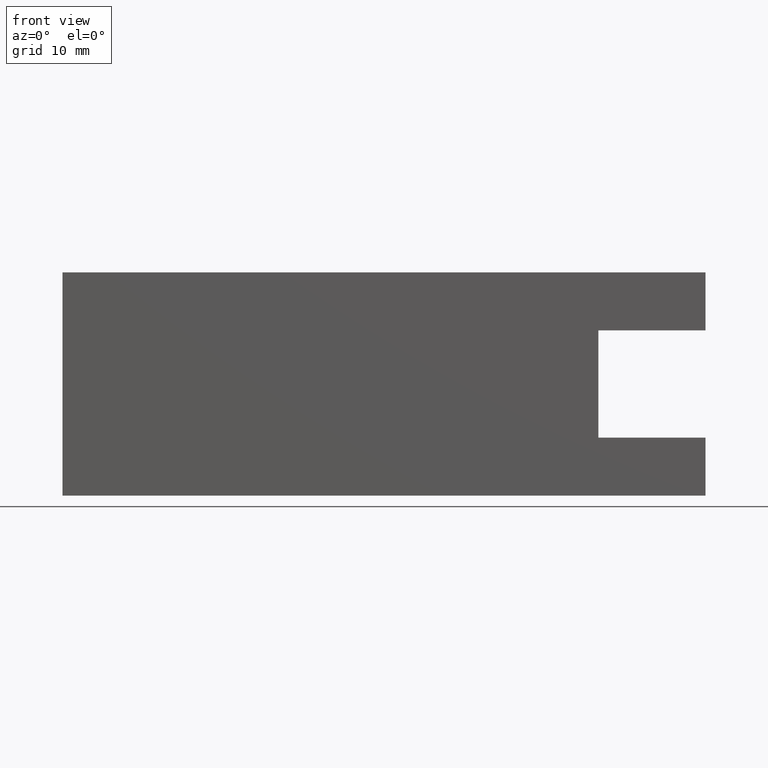
[diagram: clean part render]
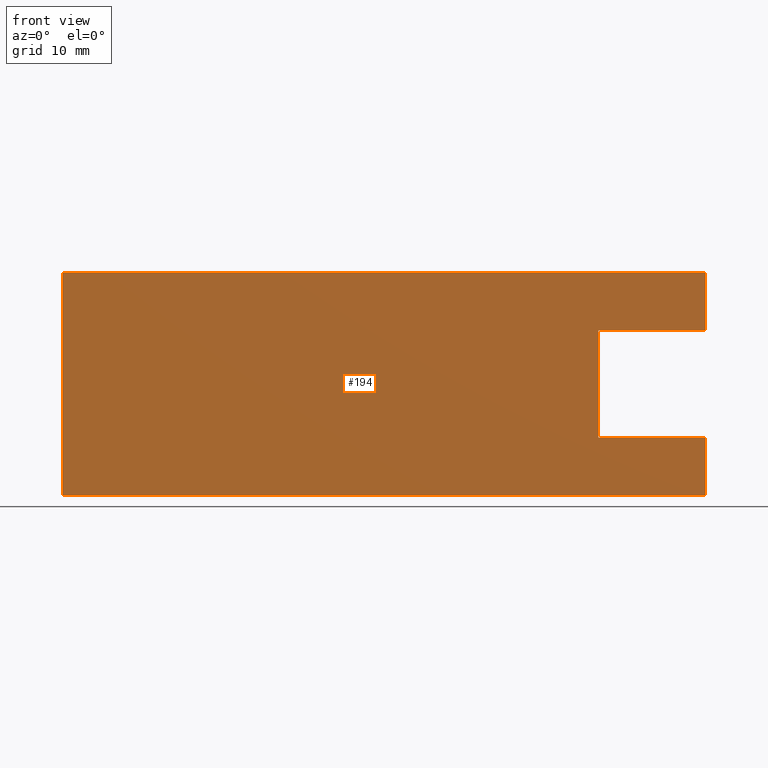
[diagram: same view with one face highlighted and labeled with its STEP entity id]
A machine part, front view. The second image highlights one B-rep face of the part: STEP entity #194.
In plain terms, the highlighted planar face has unit normal (0, -1, 0).
Its self-contained STEP definition (entity closure, byte-faithful):
#49=CARTESIAN_POINT('',(47.825283991875168,-11.961124341222465,6.499999999999995));
#50=VERTEX_POINT('',#49);
#51=CARTESIAN_POINT('',(47.825283991875168,-11.961124341222465,18.499999999999996));
#52=VERTEX_POINT('',#51);
#53=CARTESIAN_POINT('',(47.825283991875168,-11.961124341222465,6.499999999999995));
#54=DIRECTION('',(0.0,0.0,1.0));
#55=VECTOR('',#54,12.000000000000002);
#56=LINE('',#53,#55);
#57=EDGE_CURVE('',#50,#52,#56,.T.);
#89=CARTESIAN_POINT('',(59.825283991875168,-11.961124341222460,18.499999999999993));
#90=VERTEX_POINT('',#89);
#91=CARTESIAN_POINT('',(47.825283991875168,-11.961124341222465,18.499999999999996));
#92=DIRECTION('',(1.0,0.0,0.0));
#93=VECTOR('',#92,12.0);
#94=LINE('',#91,#93);
#95=EDGE_CURVE('',#52,#90,#94,.T.);
#120=CARTESIAN_POINT('',(59.825283991875160,-11.961124341222462,6.499999999999994));
#121=VERTEX_POINT('',#120);
#122=CARTESIAN_POINT('',(59.825283991875160,-11.961124341222462,6.499999999999994));
#123=DIRECTION('',(-1.0,0.0,0.0));
#124=VECTOR('',#123,11.999999999999993);
#125=LINE('',#122,#124);
#126=EDGE_CURVE('',#121,#50,#125,.T.);
#146=CARTESIAN_POINT('',(59.825283991875168,-11.961124341222460,0.0));
#147=DIRECTION('',(0.0,-1.0,0.0));
#148=DIRECTION('',(0.0,0.0,-1.0));
#149=AXIS2_PLACEMENT_3D('',#146,#147,#148);
#150=PLANE('',#149);
#151=ORIENTED_EDGE('',*,*,#126,.T.);
#152=ORIENTED_EDGE('',*,*,#57,.T.);
#153=ORIENTED_EDGE('',*,*,#95,.T.);
#154=CARTESIAN_POINT('',(59.825283991875168,-11.961124341222460,25.0));
#155=VERTEX_POINT('',#154);
#156=CARTESIAN_POINT('',(59.825283991875168,-11.961124341222460,18.499999999999993));
#157=DIRECTION('',(0.0,0.0,1.0));
#158=VECTOR('',#157,6.500000000000007);
#159=LINE('',#156,#158);
#160=EDGE_CURVE('',#90,#155,#159,.T.);
#161=ORIENTED_EDGE('',*,*,#160,.T.);
#162=CARTESIAN_POINT('',(-12.174716008124847,-11.961124341222476,25.0));
#163=VERTEX_POINT('',#162);
#164=CARTESIAN_POINT('',(59.825283991875168,-11.961124341222460,25.0));
#165=DIRECTION('',(-1.0,0.0,0.0));
#166=VECTOR('',#165,72.000000000000014);
#167=LINE('',#164,#166);
#168=EDGE_CURVE('',#155,#163,#167,.T.);
#169=ORIENTED_EDGE('',*,*,#168,.T.);
#170=CARTESIAN_POINT('',(-12.174716008124847,-11.961124341222476,0.0));
#171=VERTEX_POINT('',#170);
#172=CARTESIAN_POINT('',(-12.174716008124847,-11.961124341222476,0.0));
#173=DIRECTION('',(0.0,0.0,1.0));
#174=VECTOR('',#173,25.0);
#175=LINE('',#172,#174);
#176=EDGE_CURVE('',#171,#163,#175,.T.);
#177=ORIENTED_EDGE('',*,*,#176,.F.);
#178=CARTESIAN_POINT('',(59.825283991875168,-11.961124341222460,0.0));
#179=VERTEX_POINT('',#178);
#180=CARTESIAN_POINT('',(-12.174716008124847,-11.961124341222476,0.0));
#181=DIRECTION('',(1.0,0.0,0.0));
#182=VECTOR('',#181,72.000000000000014);
#183=LINE('',#180,#182);
#184=EDGE_CURVE('',#171,#179,#183,.T.);
#185=ORIENTED_EDGE('',*,*,#184,.T.);
#186=CARTESIAN_POINT('',(59.825283991875168,-11.961124341222460,0.0));
#187=DIRECTION('',(0.0,0.0,1.0));
#188=VECTOR('',#187,6.499999999999994);
#189=LINE('',#186,#188);
#190=EDGE_CURVE('',#179,#121,#189,.T.);
#191=ORIENTED_EDGE('',*,*,#190,.T.);
#192=EDGE_LOOP('',(#151,#152,#153,#161,#169,#177,#185,#191));
#193=FACE_OUTER_BOUND('',#192,.T.);
#194=ADVANCED_FACE('',(#193),#150,.T.);